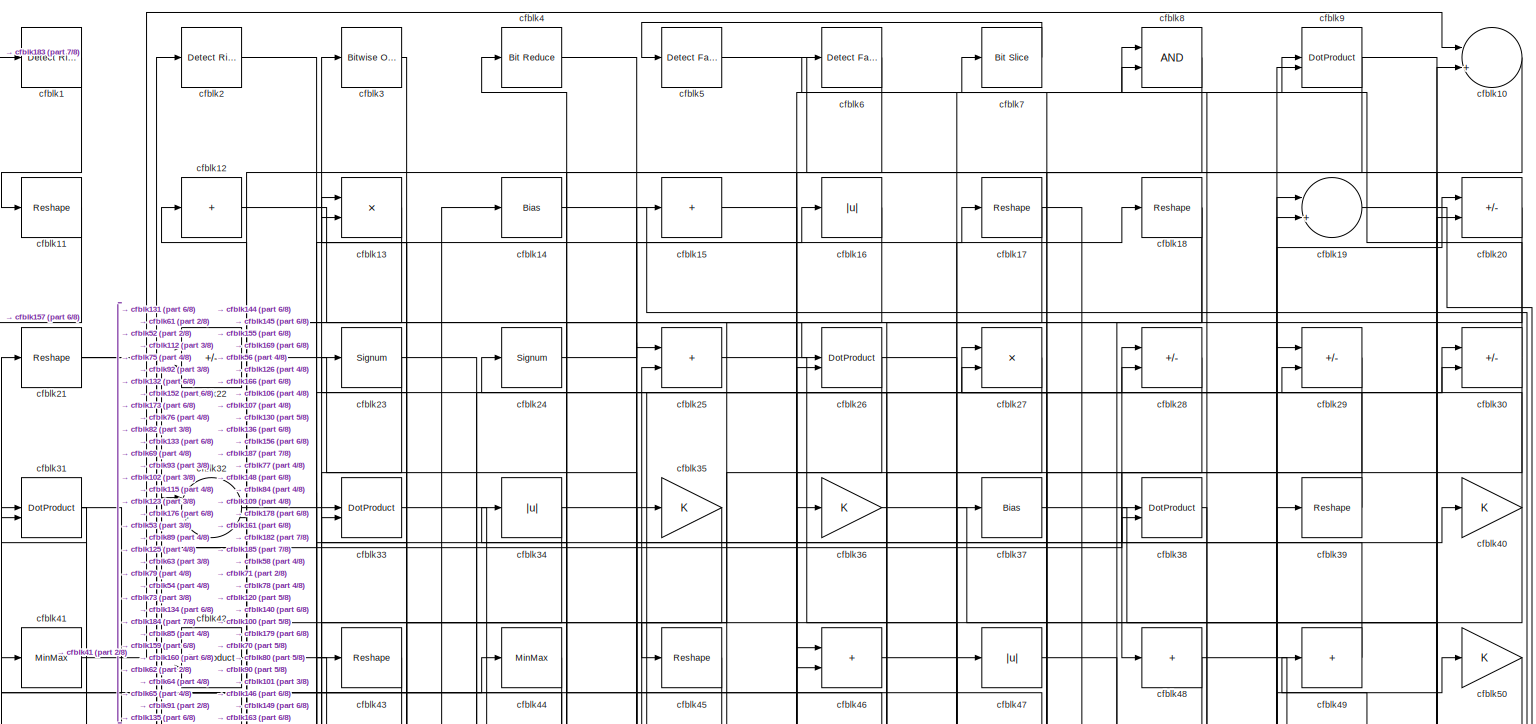
[diagram: root canvas - part 1/8, full width, top band]
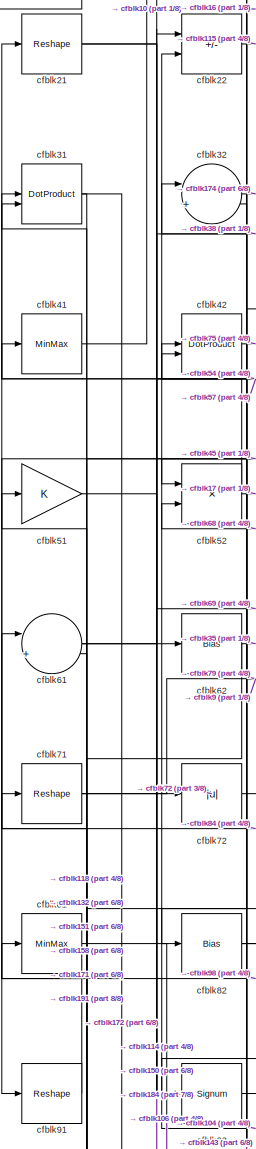
[diagram: root canvas - part 2/8, top left region]
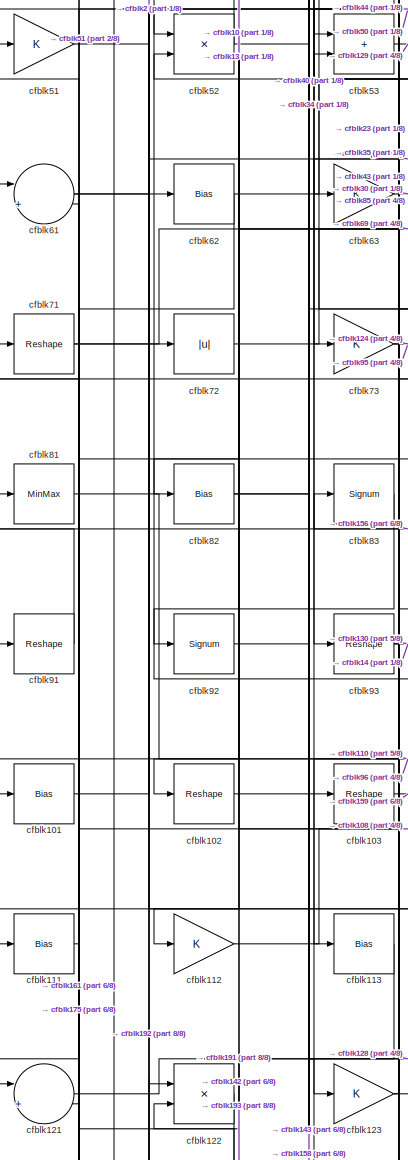
[diagram: root canvas - part 3/8, middle left region]
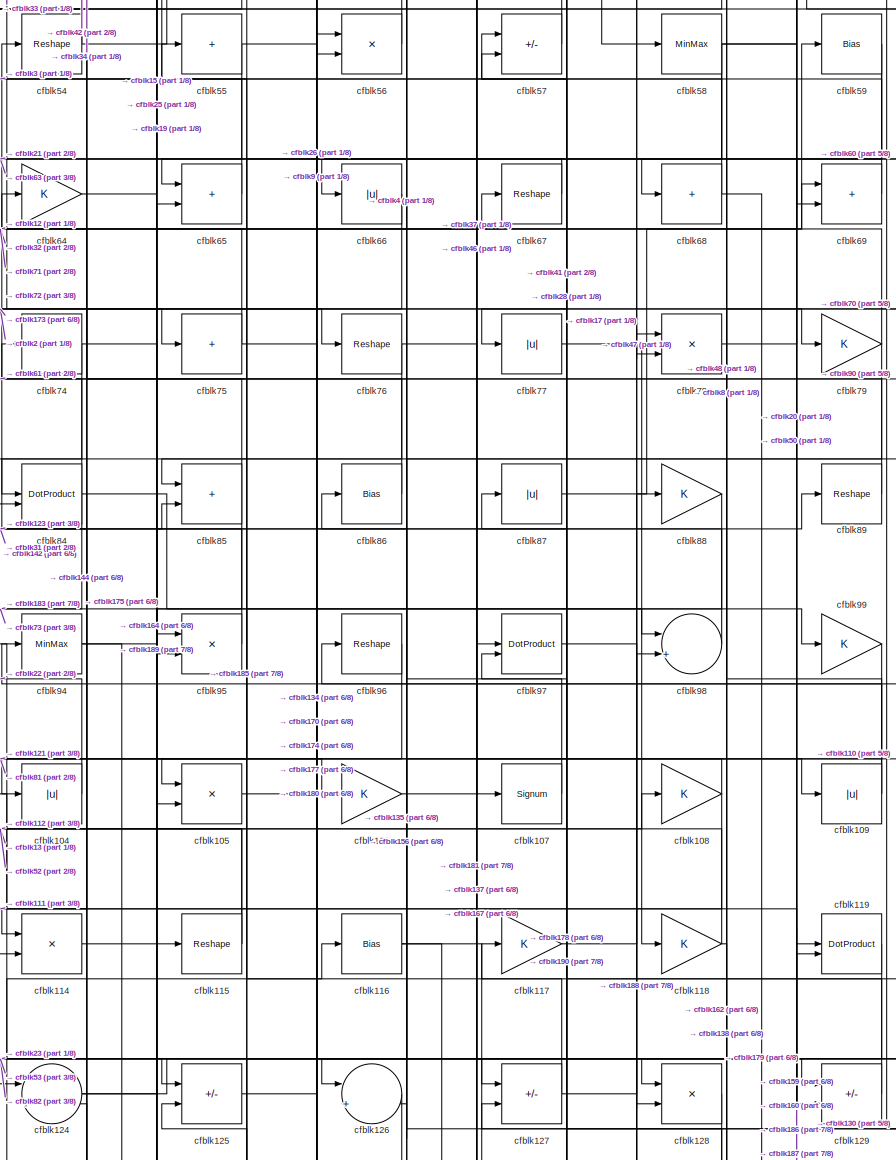
[diagram: root canvas - part 4/8, central region]
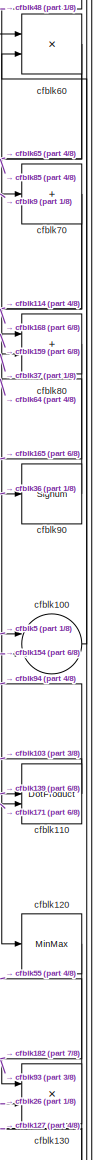
[diagram: root canvas - part 5/8, middle right region]
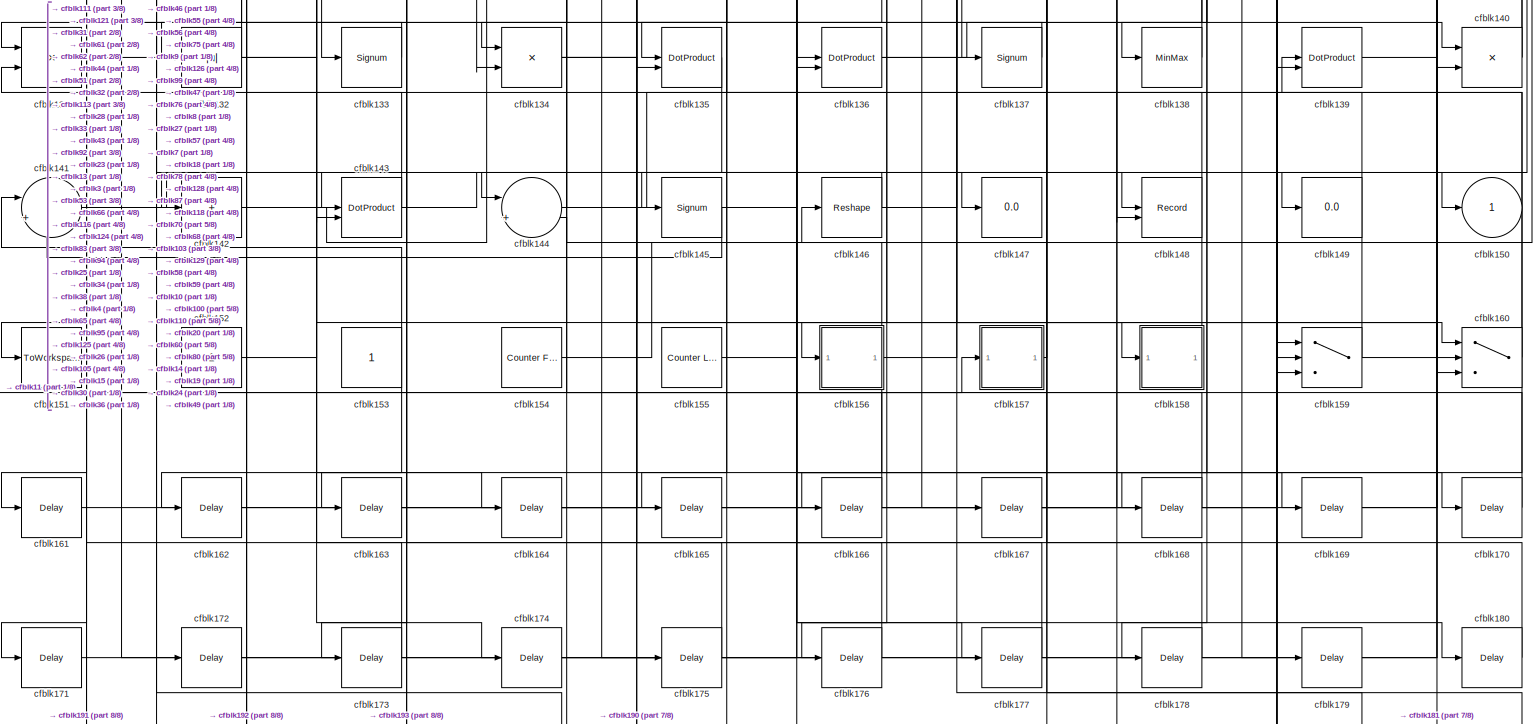
[diagram: root canvas - part 6/8, full width, bottom band]
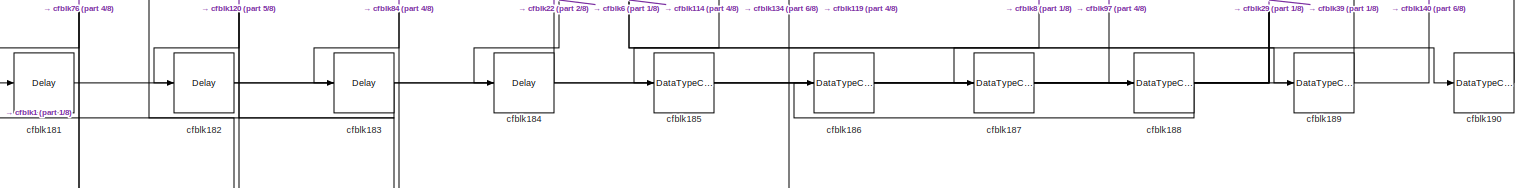
[diagram: root canvas - part 7/8, full width, bottom band]
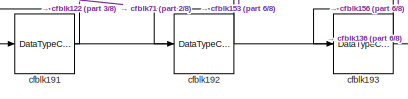
[diagram: root canvas - part 8/8, bottom left region]
MODEL slx_753512d1420a
KIND model
CONFIG AbsTol = auto
CONFIG EnableMultiTasking = off
CONFIG FixedStep = auto
CONFIG MaxStep = auto
CONFIG MinStep = auto
CONFIG RelTol = 1e-3
CONFIG SampleTimeConstraint = Unconstrained
CONFIG SolverName = VariableStepAuto
CONFIG StartTime = 0.0
CONFIG StopTime = 10.0
BLOCK [Reference] cfblk1  REF=hdlsllib/Logic and Bit
Operations/Detect Rise
Nonnegative
  SourceBlock = hdlsllib/Logic and Bit\nOperations/Detect Rise\nNonnegative
  SourceType = Detect Rise Nonnegative
BLOCK [Sum] cfblk10
  Inputs = |++
BLOCK [Sum] cfblk100
  Inputs = |++
BLOCK [Bias] cfblk101
  Bias = 0.0
  SaturateOnIntegerOverflow = off
BLOCK [Reshape] cfblk102
BLOCK [Reshape] cfblk103
BLOCK [Abs] cfblk104
  SaturateOnIntegerOverflow = off
BLOCK [Product] cfblk105
  Inputs = */
  RndMeth = Zero
  SaturateOnIntegerOverflow = on
BLOCK [Gain] cfblk106
BLOCK [Signum] cfblk107
BLOCK [Gain] cfblk108
BLOCK [Abs] cfblk109
  SaturateOnIntegerOverflow = off
BLOCK [Reshape] cfblk11
BLOCK [DotProduct] cfblk110
  OutDataTypeStr = Inherit: Inherit via internal rule
BLOCK [Bias] cfblk111
  Bias = 0.0
  SaturateOnIntegerOverflow = off
BLOCK [Gain] cfblk112
BLOCK [Bias] cfblk113
  Bias = 0.0
  SaturateOnIntegerOverflow = off
BLOCK [Product] cfblk114
  Inputs = */
  RndMeth = Zero
  SaturateOnIntegerOverflow = on
BLOCK [Reshape] cfblk115
BLOCK [Bias] cfblk116
  Bias = 0.0
  SaturateOnIntegerOverflow = off
BLOCK [Gain] cfblk117
BLOCK [Gain] cfblk118
BLOCK [DotProduct] cfblk119
  OutDataTypeStr = Inherit: Inherit via internal rule
BLOCK [Sum] cfblk12
  IconShape = rectangular
  Inputs = +
BLOCK [MinMax] cfblk120
BLOCK [Sum] cfblk121
  Inputs = |++
BLOCK [Product] cfblk122
  Inputs = */
  RndMeth = Zero
  SaturateOnIntegerOverflow = on
BLOCK [Gain] cfblk123
BLOCK [Sum] cfblk124
  Inputs = |++
BLOCK [Sum] cfblk125
  IconShape = rectangular
  Inputs = +-
BLOCK [Sum] cfblk126
  Inputs = |++
BLOCK [Sum] cfblk127
  IconShape = rectangular
  Inputs = +-
BLOCK [Product] cfblk128
  Inputs = */
  RndMeth = Zero
  SaturateOnIntegerOverflow = on
BLOCK [Sum] cfblk129
  IconShape = rectangular
  Inputs = +-
BLOCK [Product] cfblk13
  Inputs = */
  RndMeth = Zero
  SaturateOnIntegerOverflow = on
BLOCK [Product] cfblk130
  Inputs = */
  RndMeth = Zero
  SaturateOnIntegerOverflow = on
BLOCK [Product] cfblk131
  Inputs = */
  RndMeth = Zero
  SaturateOnIntegerOverflow = on
BLOCK [Abs] cfblk132
  SaturateOnIntegerOverflow = off
BLOCK [Signum] cfblk133
BLOCK [Product] cfblk134
  Inputs = */
  RndMeth = Zero
  SaturateOnIntegerOverflow = on
BLOCK [DotProduct] cfblk135
  OutDataTypeStr = Inherit: Inherit via internal rule
BLOCK [DotProduct] cfblk136
  OutDataTypeStr = Inherit: Inherit via internal rule
BLOCK [Signum] cfblk137
BLOCK [MinMax] cfblk138
BLOCK [DotProduct] cfblk139
  OutDataTypeStr = Inherit: Inherit via internal rule
BLOCK [Bias] cfblk14
  Bias = 0.0
  SaturateOnIntegerOverflow = off
BLOCK [Product] cfblk140
  Inputs = */
  RndMeth = Zero
  SaturateOnIntegerOverflow = on
BLOCK [Sum] cfblk141
  Inputs = |++
BLOCK [Sum] cfblk142
  IconShape = rectangular
  Inputs = +
BLOCK [DotProduct] cfblk143
  OutDataTypeStr = Inherit: Inherit via internal rule
BLOCK [Sum] cfblk144
  Inputs = |++
BLOCK [Signum] cfblk145
BLOCK [Reshape] cfblk146
BLOCK [Display] cfblk147
  Decimation = 1
BLOCK [Record] cfblk148
  CompatibilityTag = XY
  FileSettingsInternal = {"entries":[{"content":{"excelSettings":{"content":{},"type":"Streamout.ExcelSettings"}},"type":"Streamout.FileSettingStorage","uuid":""}],"packageUris":["http:\/\/schema.mathworks.com\/mf0\/streamout_blocks\/R2020a"],"version":"1.0"}
  Layout = [1 1]
  SignalsInternal = {"entries":[{"content":{"signals":[{"content":{"blockPath":[],"dimensions":[1],"domain":"","lineColor":"#a2142f","plots":[1],"port":1,"signalID":2664,"signalName":"XY Graph:1"},"type":"RecordBlkView.Signal","uuid":""},{"content":{"blockPath":[],"dimensions":[1],"domain":"","lineColor":"#139fff","plots":[1],"port":2,"signalID":2667,"signalName":"XY Graph:2"},"type":"RecordBlkView.Signal","uuid":""}...<+146ch>
  VisualizationBindings = {"xyplotplugin":{"info":[{"series":[{"bindingParametersList":[{"parameter":"X-Axis","signalID":2664,"signalName":"XY Graph:1"},{"parameter":"Y-Axis","signalID":2667,"signalName":"XY Graph:2"}],"seriesID":8670}],"subplotID":1}]}}
  st = -1
BLOCK [Display] cfblk149
  Decimation = 1
BLOCK [Sum] cfblk15
  IconShape = rectangular
  Inputs = +
BLOCK [Outport] cfblk150
  VectorParamsAs1DForOutWhenUnconnected = off
BLOCK [ToWorkspace] cfblk151
  MaxDataPoints = inf
  SampleTime = -1
  SaveFormat = Timeseries
  VariableName = simout
BLOCK [Constant] cfblk152
  SampleTime = -1
BLOCK [Constant] cfblk153
  SampleTime = -1
BLOCK [Reference] cfblk154  REF=hdlsllib/Sources/Counter
Free-Running
  SourceBlock = hdlsllib/Sources/Counter\nFree-Running
  SourceType = Counter Free-Running
BLOCK [Reference] cfblk155  REF=hdlsllib/Sources/Counter
Limited
  SourceBlock = hdlsllib/Sources/Counter\nLimited
  SourceType = Counter Limited
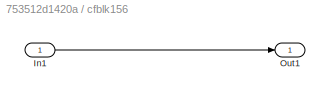
BLOCK [SubSystem] cfblk156
  LibrarySourceBlock = hdlsllib/Ports &\nSubsystems/Subsystem
BLOCK [Inport] cfblk156/In1
BLOCK [Outport] cfblk156/Out1
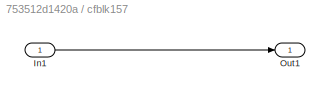
BLOCK [SubSystem] cfblk157
  LibrarySourceBlock = hdlsllib/Ports &\nSubsystems/Subsystem
BLOCK [Inport] cfblk157/In1
BLOCK [Outport] cfblk157/Out1
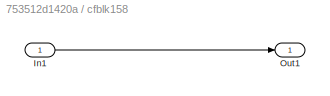
BLOCK [SubSystem] cfblk158
  LibrarySourceBlock = hdlsllib/Ports &\nSubsystems/Subsystem
BLOCK [Inport] cfblk158/In1
BLOCK [Outport] cfblk158/Out1
BLOCK [Switch] cfblk159
  InputSameDT = off
  SaturateOnIntegerOverflow = off
BLOCK [Abs] cfblk16
  SaturateOnIntegerOverflow = off
BLOCK [Switch] cfblk160
  InputSameDT = off
  SaturateOnIntegerOverflow = off
BLOCK [Delay] cfblk161
  InputPortMap = u0
  SampleTime = 1
BLOCK [Delay] cfblk162
  InputPortMap = u0
  SampleTime = 1
BLOCK [Delay] cfblk163
  InputPortMap = u0
  SampleTime = 1
BLOCK [Delay] cfblk164
  InputPortMap = u0
  SampleTime = 1
BLOCK [Delay] cfblk165
  InputPortMap = u0
  SampleTime = 1
BLOCK [Delay] cfblk166
  InputPortMap = u0
  SampleTime = 1
BLOCK [Delay] cfblk167
  InputPortMap = u0
  SampleTime = 1
BLOCK [Delay] cfblk168
  InputPortMap = u0
  SampleTime = 1
BLOCK [Delay] cfblk169
  InputPortMap = u0
  SampleTime = 1
BLOCK [Reshape] cfblk17
BLOCK [Delay] cfblk170
  InputPortMap = u0
  SampleTime = 1
BLOCK [Delay] cfblk171
  InputPortMap = u0
  SampleTime = 1
BLOCK [Delay] cfblk172
  InputPortMap = u0
  SampleTime = 1
BLOCK [Delay] cfblk173
  InputPortMap = u0
  SampleTime = 1
BLOCK [Delay] cfblk174
  InputPortMap = u0
  SampleTime = 1
BLOCK [Delay] cfblk175
  InputPortMap = u0
  SampleTime = 1
BLOCK [Delay] cfblk176
  InputPortMap = u0
  SampleTime = 1
BLOCK [Delay] cfblk177
  InputPortMap = u0
  SampleTime = 1
BLOCK [Delay] cfblk178
  InputPortMap = u0
  SampleTime = 1
BLOCK [Delay] cfblk179
  InputPortMap = u0
  SampleTime = 1
BLOCK [Reshape] cfblk18
BLOCK [Delay] cfblk180
  InputPortMap = u0
  SampleTime = 1
BLOCK [Delay] cfblk181
  InputPortMap = u0
  SampleTime = 1
BLOCK [Delay] cfblk182
  InputPortMap = u0
  SampleTime = 1
BLOCK [Delay] cfblk183
  InputPortMap = u0
  SampleTime = 1
BLOCK [Delay] cfblk184
  InputPortMap = u0
  SampleTime = 1
BLOCK [DataTypeConversion] cfblk185
  OutDataTypeStr = uint8
  RndMeth = Floor
  SaturateOnIntegerOverflow = off
BLOCK [DataTypeConversion] cfblk186
  OutDataTypeStr = uint8
  RndMeth = Floor
  SaturateOnIntegerOverflow = off
BLOCK [DataTypeConversion] cfblk187
  OutDataTypeStr = uint8
  RndMeth = Floor
  SaturateOnIntegerOverflow = off
BLOCK [DataTypeConversion] cfblk188
  OutDataTypeStr = uint8
  RndMeth = Floor
  SaturateOnIntegerOverflow = off
BLOCK [DataTypeConversion] cfblk189
  OutDataTypeStr = uint8
  RndMeth = Floor
  SaturateOnIntegerOverflow = off
BLOCK [Sum] cfblk19
  Inputs = |++
BLOCK [DataTypeConversion] cfblk190
  OutDataTypeStr = uint8
  RndMeth = Floor
  SaturateOnIntegerOverflow = off
BLOCK [DataTypeConversion] cfblk191
  RndMeth = Floor
  SaturateOnIntegerOverflow = off
BLOCK [DataTypeConversion] cfblk192
  OutDataTypeStr = uint8
  RndMeth = Floor
  SaturateOnIntegerOverflow = off
BLOCK [DataTypeConversion] cfblk193
  OutDataTypeStr = uint8
  RndMeth = Floor
  SaturateOnIntegerOverflow = off
BLOCK [Reference] cfblk2  REF=hdlsllib/Logic and Bit
Operations/Detect Rise
Positive
  SourceBlock = hdlsllib/Logic and Bit\nOperations/Detect Rise\nPositive
  SourceType = Detect Rise Positive
BLOCK [Sum] cfblk20
  IconShape = rectangular
  Inputs = +-
BLOCK [Reshape] cfblk21
BLOCK [Sum] cfblk22
  IconShape = rectangular
  Inputs = +-
BLOCK [Signum] cfblk23
BLOCK [Signum] cfblk24
BLOCK [Sum] cfblk25
  IconShape = rectangular
BLOCK [DotProduct] cfblk26
  OutDataTypeStr = Inherit: Inherit via internal rule
BLOCK [Product] cfblk27
  Inputs = */
  RndMeth = Zero
  SaturateOnIntegerOverflow = on
BLOCK [Sum] cfblk28
  IconShape = rectangular
  Inputs = +-
BLOCK [Sum] cfblk29
  IconShape = rectangular
  Inputs = +-
BLOCK [Reference] cfblk3  REF=simulink/Logic and Bit
Operations/Bitwise
Operator
  LibrarySourceBlock = hdlsllib/Logic and Bit\nOperations/Bitwise\nOperator
  SourceBlock = simulink/Logic and Bit\nOperations/Bitwise\nOperator
  SourceType = Bitwise Operator
BLOCK [Sum] cfblk30
  IconShape = rectangular
  Inputs = +-
BLOCK [DotProduct] cfblk31
  OutDataTypeStr = Inherit: Inherit via internal rule
BLOCK [Sum] cfblk32
  Inputs = |++
BLOCK [DotProduct] cfblk33
  OutDataTypeStr = Inherit: Inherit via internal rule
BLOCK [Abs] cfblk34
  SaturateOnIntegerOverflow = off
BLOCK [Gain] cfblk35
BLOCK [Gain] cfblk36
BLOCK [Bias] cfblk37
  Bias = 0.0
  SaturateOnIntegerOverflow = off
BLOCK [DotProduct] cfblk38
  OutDataTypeStr = Inherit: Inherit via internal rule
BLOCK [Reshape] cfblk39
BLOCK [Reference] cfblk4  REF=hdlsllib/Logic and Bit
Operations/Bit Reduce
  SourceBlock = hdlsllib/Logic and Bit\nOperations/Bit Reduce
  SourceType = Bit Reduce
BLOCK [Gain] cfblk40
BLOCK [MinMax] cfblk41
BLOCK [DotProduct] cfblk42
  OutDataTypeStr = Inherit: Inherit via internal rule
BLOCK [Reshape] cfblk43
BLOCK [MinMax] cfblk44
BLOCK [Reshape] cfblk45
BLOCK [Sum] cfblk46
  IconShape = rectangular
BLOCK [Abs] cfblk47
  SaturateOnIntegerOverflow = off
BLOCK [Sum] cfblk48
  IconShape = rectangular
  Inputs = +
BLOCK [Sum] cfblk49
  IconShape = rectangular
  Inputs = +
BLOCK [Reference] cfblk5  REF=hdlsllib/Logic and Bit
Operations/Detect Fall
Nonpositive
  SourceBlock = hdlsllib/Logic and Bit\nOperations/Detect Fall\nNonpositive
  SourceType = Detect Fall Nonpositive
BLOCK [Gain] cfblk50
BLOCK [Gain] cfblk51
BLOCK [Product] cfblk52
  Inputs = */
  RndMeth = Zero
  SaturateOnIntegerOverflow = on
BLOCK [Sum] cfblk53
  IconShape = rectangular
BLOCK [Reshape] cfblk54
BLOCK [Sum] cfblk55
  IconShape = rectangular
  Inputs = +
BLOCK [Product] cfblk56
  Inputs = */
  RndMeth = Zero
  SaturateOnIntegerOverflow = on
BLOCK [Sum] cfblk57
  IconShape = rectangular
  Inputs = +-
BLOCK [MinMax] cfblk58
BLOCK [Bias] cfblk59
  Bias = 0.0
  SaturateOnIntegerOverflow = off
BLOCK [Reference] cfblk6  REF=hdlsllib/Logic and Bit
Operations/Detect Fall
Nonpositive
  SourceBlock = hdlsllib/Logic and Bit\nOperations/Detect Fall\nNonpositive
  SourceType = Detect Fall Nonpositive
BLOCK [Product] cfblk60
  Inputs = */
  RndMeth = Zero
  SaturateOnIntegerOverflow = on
BLOCK [Sum] cfblk61
  Inputs = |++
BLOCK [Bias] cfblk62
  Bias = 0.0
  SaturateOnIntegerOverflow = off
BLOCK [Gain] cfblk63
BLOCK [Gain] cfblk64
BLOCK [Sum] cfblk65
  IconShape = rectangular
BLOCK [Abs] cfblk66
  SaturateOnIntegerOverflow = off
BLOCK [Reshape] cfblk67
BLOCK [Sum] cfblk68
  IconShape = rectangular
  Inputs = +
BLOCK [Sum] cfblk69
  IconShape = rectangular
BLOCK [Reference] cfblk7  REF=hdlsllib/Logic and Bit
Operations/Bit Slice
  SourceBlock = hdlsllib/Logic and Bit\nOperations/Bit Slice
  SourceType = Bit Slice
BLOCK [Sum] cfblk70
  IconShape = rectangular
  Inputs = +
BLOCK [Reshape] cfblk71
BLOCK [Abs] cfblk72
  SaturateOnIntegerOverflow = off
BLOCK [Gain] cfblk73
BLOCK [MinMax] cfblk74
BLOCK [Sum] cfblk75
  IconShape = rectangular
  Inputs = +
BLOCK [Reshape] cfblk76
BLOCK [Abs] cfblk77
  SaturateOnIntegerOverflow = off
BLOCK [Product] cfblk78
  Inputs = */
  RndMeth = Zero
  SaturateOnIntegerOverflow = on
BLOCK [Gain] cfblk79
BLOCK [Logic] cfblk8
  AllPortsSameDT = off
  OutDataTypeStr = boolean
BLOCK [Sum] cfblk80
  IconShape = rectangular
BLOCK [MinMax] cfblk81
BLOCK [Bias] cfblk82
  Bias = 0.0
  SaturateOnIntegerOverflow = off
BLOCK [Signum] cfblk83
BLOCK [DotProduct] cfblk84
  OutDataTypeStr = Inherit: Inherit via internal rule
BLOCK [Sum] cfblk85
  IconShape = rectangular
BLOCK [Bias] cfblk86
  Bias = 0.0
  SaturateOnIntegerOverflow = off
BLOCK [Abs] cfblk87
  SaturateOnIntegerOverflow = off
BLOCK [Gain] cfblk88
BLOCK [Reshape] cfblk89
BLOCK [DotProduct] cfblk9
  OutDataTypeStr = Inherit: Inherit via internal rule
BLOCK [Signum] cfblk90
BLOCK [Reshape] cfblk91
BLOCK [Signum] cfblk92
BLOCK [Reshape] cfblk93
BLOCK [MinMax] cfblk94
BLOCK [Product] cfblk95
  Inputs = */
  RndMeth = Zero
  SaturateOnIntegerOverflow = on
BLOCK [Reshape] cfblk96
BLOCK [DotProduct] cfblk97
  OutDataTypeStr = Inherit: Inherit via internal rule
BLOCK [Sum] cfblk98
  Inputs = |++
BLOCK [Gain] cfblk99
LINE cfblk100:1 -> cfblk60:2
LINE cfblk101:1 -> cfblk2:1
LINE cfblk102:1 -> cfblk113:1
LINE cfblk103:1 -> cfblk159:1
LINE cfblk104:1 -> cfblk22:2
LINE cfblk105:1 -> cfblk170:1
LINE cfblk106:1 -> cfblk37:1
LINE cfblk107:1 -> cfblk86:1
NET cfblk108:1 -> cfblk104:1, cfblk111:1
NET cfblk109:1 -> cfblk8:2, cfblk96:1
LINE cfblk10:1 -> cfblk112:1
NET cfblk110:1 -> cfblk103:1, cfblk94:1
LINE cfblk111:1 -> cfblk161:1
LINE cfblk112:1 -> cfblk108:1
LINE cfblk113:1 -> cfblk143:2
LINE cfblk114:1 -> cfblk189:1
NET cfblk115:1 -> cfblk13:1, cfblk52:2
NET cfblk116:1 -> cfblk137:1, cfblk167:1
LINE cfblk117:1 -> cfblk88:1
NET cfblk118:1 -> cfblk138:1, cfblk81:1
LINE cfblk119:1 -> cfblk185:1
LINE cfblk11:1 -> cfblk157:1
LINE cfblk120:1 -> cfblk182:1
LINE cfblk121:1 -> cfblk123:1
LINE cfblk122:1 -> cfblk191:1
NET cfblk123:1 -> cfblk23:1, cfblk85:2
NET cfblk124:1 -> cfblk127:1, cfblk67:1
LINE cfblk125:1 -> cfblk26:2
LINE cfblk126:1 -> cfblk135:2
NET cfblk127:1 -> cfblk117:1, cfblk98:2
LINE cfblk128:1 -> cfblk162:1
LINE cfblk129:1 -> cfblk57:1
LINE cfblk12:1 -> cfblk26:1
NET cfblk130:1 -> cfblk127:2, cfblk55:1
LINE cfblk131:1 -> cfblk44:1
NET cfblk132:1 -> cfblk164:1, cfblk28:2, cfblk51:1
LINE cfblk133:1 -> cfblk131:1
NET cfblk134:1 -> cfblk147:1, cfblk190:1, cfblk38:2
LINE cfblk135:1 -> cfblk144:1
NET cfblk136:1 -> cfblk140:1, cfblk18:1
LINE cfblk137:1 -> cfblk132:1
LINE cfblk138:1 -> cfblk87:1
LINE cfblk139:1 -> cfblk110:1
LINE cfblk13:1 -> cfblk82:1
NET cfblk140:1 -> cfblk24:1, cfblk49:1
LINE cfblk141:1 -> cfblk143:1
LINE cfblk142:1 -> cfblk116:1
NET cfblk143:1 -> cfblk148:1, cfblk32:2, cfblk53:2
NET cfblk144:1 -> cfblk124:2, cfblk36:1
NET cfblk145:1 -> cfblk141:2, cfblk30:2
NET cfblk146:1 -> cfblk145:1, cfblk47:1
LINE cfblk14:1 -> cfblk149:1
LINE cfblk152:1 -> cfblk43:1
NET cfblk153:1 -> cfblk141:1, cfblk192:1
LINE cfblk154:1 -> cfblk100:2
LINE cfblk155:1 -> cfblk9:1
LINE cfblk156/In1:1 -> cfblk156/Out1:1
NET cfblk156:1 -> cfblk193:1, cfblk83:1, cfblk8:1
LINE cfblk157/In1:1 -> cfblk157/Out1:1
LINE cfblk157:1 -> cfblk7:1
LINE cfblk158/In1:1 -> cfblk158/Out1:1
LINE cfblk158:1 -> cfblk61:2
NET cfblk159:1 -> cfblk27:2, cfblk80:1
LINE cfblk15:1 -> cfblk169:1
NET cfblk160:1 -> cfblk125:2, cfblk139:1, cfblk176:1
LINE cfblk161:1 -> cfblk19:2
LINE cfblk162:1 -> cfblk78:1
LINE cfblk163:1 -> cfblk25:1
LINE cfblk164:1 -> cfblk65:2
LINE cfblk165:1 -> cfblk60:1
LINE cfblk166:1 -> cfblk46:1
LINE cfblk167:1 -> cfblk129:2
LINE cfblk168:1 -> cfblk131:2
LINE cfblk169:1 -> cfblk10:2
LINE cfblk16:1 -> cfblk52:1
LINE cfblk170:1 -> cfblk144:2
LINE cfblk171:1 -> cfblk110:2
LINE cfblk172:1 -> cfblk139:2
LINE cfblk173:1 -> cfblk33:1
LINE cfblk174:1 -> cfblk56:1
LINE cfblk175:1 -> cfblk121:2
LINE cfblk176:1 -> cfblk13:2
LINE cfblk177:1 -> cfblk95:1
LINE cfblk178:1 -> cfblk57:2
LINE cfblk179:1 -> cfblk20:2
NET cfblk17:1 -> cfblk126:1, cfblk58:1
LINE cfblk180:1 -> cfblk136:1
LINE cfblk181:1 -> cfblk140:2
LINE cfblk182:1 -> cfblk29:1
LINE cfblk183:1 -> cfblk1:1
LINE cfblk184:1 -> cfblk22:1
LINE cfblk185:1 -> cfblk39:1
LINE cfblk186:1 -> cfblk119:1
LINE cfblk187:1 -> cfblk119:2
LINE cfblk188:1 -> cfblk186:1
LINE cfblk189:1 -> cfblk97:1
NET cfblk18:1 -> cfblk134:1, cfblk148:2
LINE cfblk190:1 -> cfblk97:2
NET cfblk191:1 -> cfblk136:2, cfblk71:1
LINE cfblk192:1 -> cfblk122:1
LINE cfblk193:1 -> cfblk122:2
LINE cfblk19:1 -> cfblk146:1
LINE cfblk1:1 -> cfblk11:1
LINE cfblk20:1 -> cfblk45:1
NET cfblk21:1 -> cfblk62:1, cfblk69:2
LINE cfblk22:1 -> cfblk115:1
NET cfblk23:1 -> cfblk125:1, cfblk133:1
LINE cfblk24:1 -> cfblk16:1
LINE cfblk25:1 -> cfblk107:1
NET cfblk26:1 -> cfblk130:2, cfblk135:1
LINE cfblk27:1 -> cfblk166:1
LINE cfblk28:1 -> cfblk77:1
LINE cfblk29:1 -> cfblk46:2
LINE cfblk2:1 -> cfblk76:1
NET cfblk30:1 -> cfblk48:1, cfblk6:1
NET cfblk31:1 -> cfblk171:1, cfblk172:1
LINE cfblk32:1 -> cfblk174:1
LINE cfblk33:1 -> cfblk79:1
NET cfblk34:1 -> cfblk159:2, cfblk93:1
LINE cfblk35:1 -> cfblk53:1
LINE cfblk36:1 -> cfblk90:1
LINE cfblk37:1 -> cfblk80:2
LINE cfblk38:1 -> cfblk178:1
LINE cfblk39:1 -> cfblk27:1
LINE cfblk3:1 -> cfblk163:1
NET cfblk40:1 -> cfblk29:2, cfblk92:1
LINE cfblk41:1 -> cfblk10:1
LINE cfblk42:1 -> cfblk75:1
LINE cfblk43:1 -> cfblk102:1
LINE cfblk44:1 -> cfblk73:1
LINE cfblk45:1 -> cfblk91:1
LINE cfblk46:1 -> cfblk109:1
LINE cfblk47:1 -> cfblk78:2
NET cfblk48:1 -> cfblk120:1, cfblk84:2
LINE cfblk49:1 -> cfblk28:1
LINE cfblk4:1 -> cfblk160:1
LINE cfblk50:1 -> cfblk101:1
LINE cfblk51:1 -> cfblk72:1
NET cfblk52:1 -> cfblk17:1, cfblk31:1
LINE cfblk53:1 -> cfblk129:1
NET cfblk54:1 -> cfblk19:1, cfblk42:1
NET cfblk55:1 -> cfblk134:2, cfblk177:1
LINE cfblk56:1 -> cfblk4:1
LINE cfblk57:1 -> cfblk41:1
NET cfblk58:1 -> cfblk160:3, cfblk50:1, cfblk63:1, cfblk68:1
NET cfblk59:1 -> cfblk128:1, cfblk159:3
LINE cfblk5:1 -> cfblk100:1
NET cfblk60:1 -> cfblk65:1, cfblk85:1
NET cfblk61:1 -> cfblk150:1, cfblk38:1
NET cfblk62:1 -> cfblk151:1, cfblk35:1
LINE cfblk63:1 -> cfblk30:1
LINE cfblk64:1 -> cfblk15:1
LINE cfblk65:1 -> cfblk25:2
LINE cfblk66:1 -> cfblk173:1
LINE cfblk67:1 -> cfblk66:1
NET cfblk68:1 -> cfblk179:1, cfblk42:2
LINE cfblk69:1 -> cfblk3:1
LINE cfblk6:1 -> cfblk184:1
NET cfblk70:1 -> cfblk114:1, cfblk168:1
NET cfblk71:1 -> cfblk114:2, cfblk9:2
LINE cfblk72:1 -> cfblk69:1
NET cfblk73:1 -> cfblk124:1, cfblk95:2
NET cfblk74:1 -> cfblk84:1, cfblk99:1
NET cfblk75:1 -> cfblk12:1, cfblk180:1
NET cfblk76:1 -> cfblk160:2, cfblk181:1
LINE cfblk77:1 -> cfblk118:1
LINE cfblk78:1 -> cfblk20:1
NET cfblk79:1 -> cfblk126:2, cfblk32:1
LINE cfblk7:1 -> cfblk5:1
LINE cfblk80:1 -> cfblk165:1
LINE cfblk81:1 -> cfblk106:1
NET cfblk82:1 -> cfblk128:2, cfblk40:1
LINE cfblk83:1 -> cfblk142:1
NET cfblk84:1 -> cfblk183:1, cfblk61:1, cfblk98:1
NET cfblk85:1 -> cfblk105:2, cfblk34:1
LINE cfblk86:1 -> cfblk54:1
LINE cfblk87:1 -> cfblk59:1
LINE cfblk88:1 -> cfblk105:1
LINE cfblk89:1 -> cfblk33:2
LINE cfblk8:1 -> cfblk187:1
LINE cfblk90:1 -> cfblk64:1
LINE cfblk91:1 -> cfblk21:1
LINE cfblk92:1 -> cfblk158:1
NET cfblk93:1 -> cfblk130:1, cfblk14:1
NET cfblk94:1 -> cfblk175:1, cfblk89:1
LINE cfblk95:1 -> cfblk74:1
LINE cfblk96:1 -> cfblk121:1
LINE cfblk97:1 -> cfblk188:1
LINE cfblk98:1 -> cfblk31:2
LINE cfblk99:1 -> cfblk156:1
NET cfblk9:1 -> cfblk56:2, cfblk70:1
note: NET lines group one-source signal fan-out (src -> all destinations, sorted); 1:1 wires keep LINE
